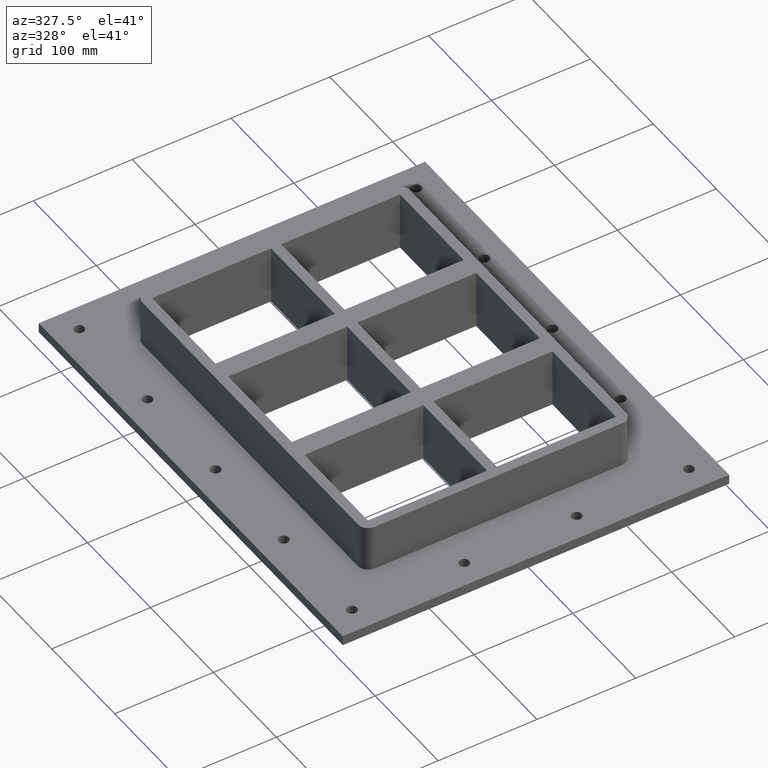
[diagram: clean part render]
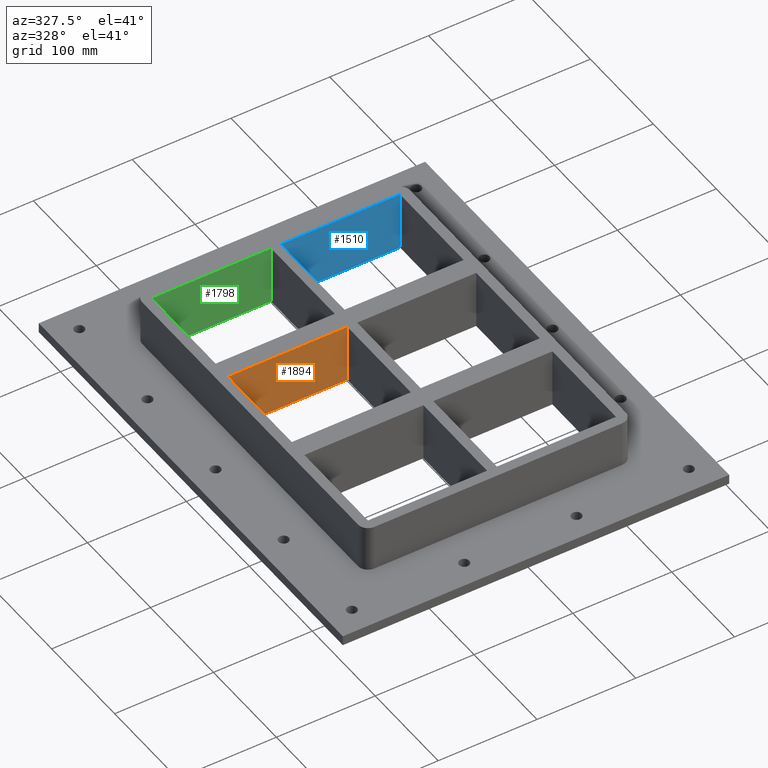
[diagram: same view with three faces highlighted in distinct colors, each labeled with its STEP entity id]
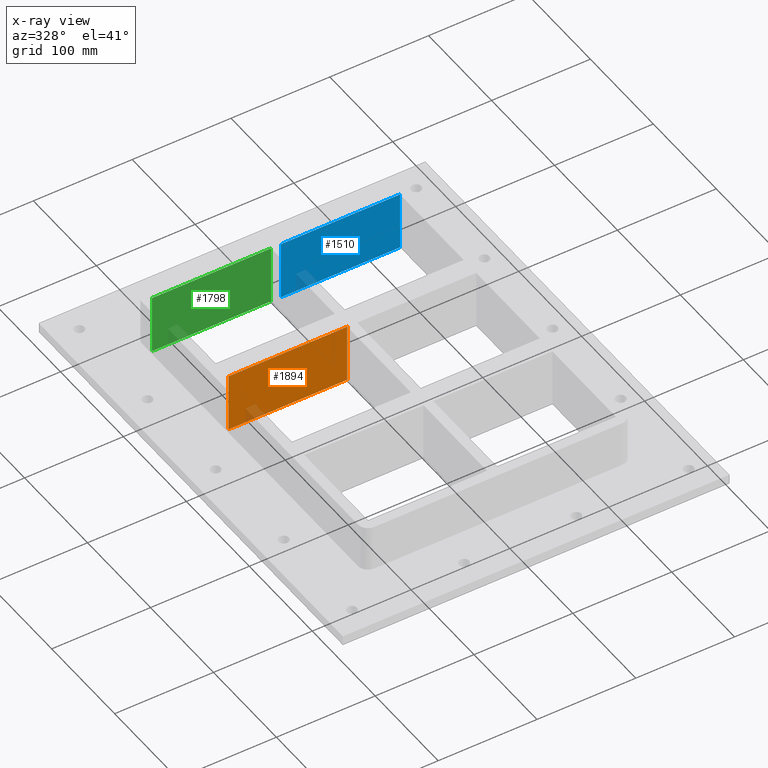
[diagram: x-ray of the same camera — body ghosted, the three highlighted faces saturated]
A machine part, auxiliary view with three faces highlighted in distinct colors.
The next image is the same camera in x-ray (body ghosted, the three faces saturated) — at least one of them is partly hidden behind the body in this view.
Their STEP definitions:

[orange] entity #1894 — the highlighted planar face has unit normal (0, 1, 0).
#1238=CARTESIAN_POINT('',(-125.50000000000003,50.499999999999957,-30.0));
#1239=VERTEX_POINT('',#1238);
#1256=CARTESIAN_POINT('',(-5.000000000000012,50.499999999999972,-30.0));
#1257=VERTEX_POINT('',#1256);
#1264=CARTESIAN_POINT('',(-5.000000000000007,50.499999999999972,-30.0));
#1265=DIRECTION('',(-1.0,0.0,0.0));
#1266=VECTOR('',#1265,120.50000000000003);
#1267=LINE('',#1264,#1266);
#1268=EDGE_CURVE('',#1257,#1239,#1267,.T.);
#1805=CARTESIAN_POINT('',(-125.50000000000003,50.499999999999957,30.0));
#1806=VERTEX_POINT('',#1805);
#1807=CARTESIAN_POINT('',(-125.50000000000003,50.499999999999957,30.0));
#1808=DIRECTION('',(0.0,0.0,-1.0));
#1809=VECTOR('',#1808,60.0);
#1810=LINE('',#1807,#1809);
#1811=EDGE_CURVE('',#1806,#1239,#1810,.T.);
#1861=CARTESIAN_POINT('',(-5.000000000000012,50.499999999999972,30.0));
#1862=VERTEX_POINT('',#1861);
#1869=CARTESIAN_POINT('',(-5.000000000000012,50.499999999999972,30.0));
#1870=DIRECTION('',(0.0,0.0,-1.0));
#1871=VECTOR('',#1870,60.0);
#1872=LINE('',#1869,#1871);
#1873=EDGE_CURVE('',#1862,#1257,#1872,.T.);
#1878=CARTESIAN_POINT('',(-125.50000000000003,50.499999999999957,30.0));
#1879=DIRECTION('',(0.0,1.0,0.0));
#1880=DIRECTION('',(1.0,0.0,0.0));
#1881=AXIS2_PLACEMENT_3D('',#1878,#1879,#1880);
#1882=PLANE('',#1881);
#1883=ORIENTED_EDGE('',*,*,#1268,.F.);
#1884=ORIENTED_EDGE('',*,*,#1873,.F.);
#1885=CARTESIAN_POINT('',(-125.50000000000003,50.499999999999957,30.0));
#1886=DIRECTION('',(1.0,0.0,0.0));
#1887=VECTOR('',#1886,120.50000000000003);
#1888=LINE('',#1885,#1887);
#1889=EDGE_CURVE('',#1806,#1862,#1888,.T.);
#1890=ORIENTED_EDGE('',*,*,#1889,.F.);
#1891=ORIENTED_EDGE('',*,*,#1811,.T.);
#1892=EDGE_LOOP('',(#1883,#1884,#1890,#1891));
#1893=FACE_OUTER_BOUND('',#1892,.T.);
#1894=ADVANCED_FACE('',(#1893),#1882,.F.);

[blue] entity #1510 — the highlighted planar face has unit normal (0, 1, 0).
#1102=CARTESIAN_POINT('',(4.999999999999953,171.5,-30.0));
#1103=VERTEX_POINT('',#1102);
#1120=CARTESIAN_POINT('',(125.49999999999996,171.5,-30.0));
#1121=VERTEX_POINT('',#1120);
#1128=CARTESIAN_POINT('',(125.49999999999994,171.50000000000003,-30.0));
#1129=DIRECTION('',(-1.0,0.0,0.0));
#1130=VECTOR('',#1129,120.49999999999999);
#1131=LINE('',#1128,#1130);
#1132=EDGE_CURVE('',#1121,#1103,#1131,.T.);
#1421=CARTESIAN_POINT('',(4.999999999999953,171.5,30.0));
#1422=VERTEX_POINT('',#1421);
#1423=CARTESIAN_POINT('',(4.999999999999953,171.5,30.0));
#1424=DIRECTION('',(0.0,0.0,-1.0));
#1425=VECTOR('',#1424,60.0);
#1426=LINE('',#1423,#1425);
#1427=EDGE_CURVE('',#1422,#1103,#1426,.T.);
#1477=CARTESIAN_POINT('',(125.49999999999996,171.5,30.0));
#1478=VERTEX_POINT('',#1477);
#1485=CARTESIAN_POINT('',(125.49999999999996,171.5,30.0));
#1486=DIRECTION('',(0.0,0.0,-1.0));
#1487=VECTOR('',#1486,60.0);
#1488=LINE('',#1485,#1487);
#1489=EDGE_CURVE('',#1478,#1121,#1488,.T.);
#1494=CARTESIAN_POINT('',(4.999999999999953,171.5,30.0));
#1495=DIRECTION('',(0.0,1.0,0.0));
#1496=DIRECTION('',(1.0,0.0,0.0));
#1497=AXIS2_PLACEMENT_3D('',#1494,#1495,#1496);
#1498=PLANE('',#1497);
#1499=ORIENTED_EDGE('',*,*,#1132,.F.);
#1500=ORIENTED_EDGE('',*,*,#1489,.F.);
#1501=CARTESIAN_POINT('',(4.999999999999953,171.5,30.0));
#1502=DIRECTION('',(1.0,0.0,0.0));
#1503=VECTOR('',#1502,120.49999999999999);
#1504=LINE('',#1501,#1503);
#1505=EDGE_CURVE('',#1422,#1478,#1504,.T.);
#1506=ORIENTED_EDGE('',*,*,#1505,.F.);
#1507=ORIENTED_EDGE('',*,*,#1427,.T.);
#1508=EDGE_LOOP('',(#1499,#1500,#1506,#1507));
#1509=FACE_OUTER_BOUND('',#1508,.T.);
#1510=ADVANCED_FACE('',(#1509),#1498,.F.);

[green] entity #1798 — the highlighted planar face has unit normal (0, 1, 0).
#1204=CARTESIAN_POINT('',(-125.50000000000009,171.5,-30.0));
#1205=VERTEX_POINT('',#1204);
#1222=CARTESIAN_POINT('',(-5.00000000000006,171.5,-30.0));
#1223=VERTEX_POINT('',#1222);
#1230=CARTESIAN_POINT('',(-5.000000000000064,171.5,-30.0));
#1231=DIRECTION('',(-1.0,0.0,0.0));
#1232=VECTOR('',#1231,120.50000000000003);
#1233=LINE('',#1230,#1232);
#1234=EDGE_CURVE('',#1223,#1205,#1233,.T.);
#1709=CARTESIAN_POINT('',(-125.50000000000009,171.5,30.0));
#1710=VERTEX_POINT('',#1709);
#1711=CARTESIAN_POINT('',(-125.50000000000009,171.5,30.0));
#1712=DIRECTION('',(0.0,0.0,-1.0));
#1713=VECTOR('',#1712,60.0);
#1714=LINE('',#1711,#1713);
#1715=EDGE_CURVE('',#1710,#1205,#1714,.T.);
#1765=CARTESIAN_POINT('',(-5.00000000000006,171.5,30.0));
#1766=VERTEX_POINT('',#1765);
#1773=CARTESIAN_POINT('',(-5.00000000000006,171.5,30.0));
#1774=DIRECTION('',(0.0,0.0,-1.0));
#1775=VECTOR('',#1774,60.0);
#1776=LINE('',#1773,#1775);
#1777=EDGE_CURVE('',#1766,#1223,#1776,.T.);
#1782=CARTESIAN_POINT('',(-125.50000000000009,171.5,30.0));
#1783=DIRECTION('',(0.0,1.0,0.0));
#1784=DIRECTION('',(1.0,0.0,0.0));
#1785=AXIS2_PLACEMENT_3D('',#1782,#1783,#1784);
#1786=PLANE('',#1785);
#1787=ORIENTED_EDGE('',*,*,#1234,.F.);
#1788=ORIENTED_EDGE('',*,*,#1777,.F.);
#1789=CARTESIAN_POINT('',(-125.50000000000009,171.5,30.0));
#1790=DIRECTION('',(1.0,0.0,0.0));
#1791=VECTOR('',#1790,120.50000000000003);
#1792=LINE('',#1789,#1791);
#1793=EDGE_CURVE('',#1710,#1766,#1792,.T.);
#1794=ORIENTED_EDGE('',*,*,#1793,.F.);
#1795=ORIENTED_EDGE('',*,*,#1715,.T.);
#1796=EDGE_LOOP('',(#1787,#1788,#1794,#1795));
#1797=FACE_OUTER_BOUND('',#1796,.T.);
#1798=ADVANCED_FACE('',(#1797),#1786,.F.);